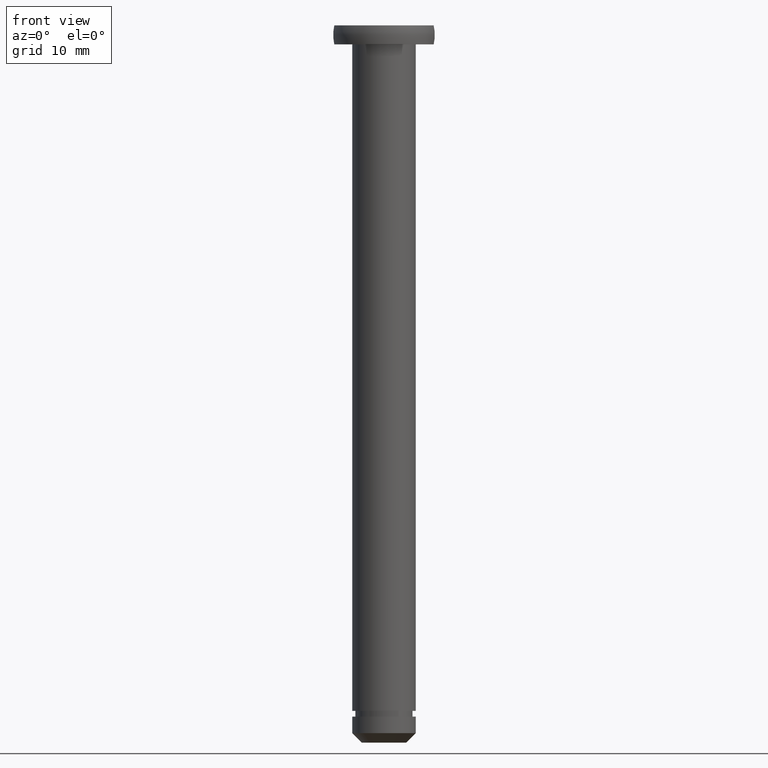
[diagram: clean part render]
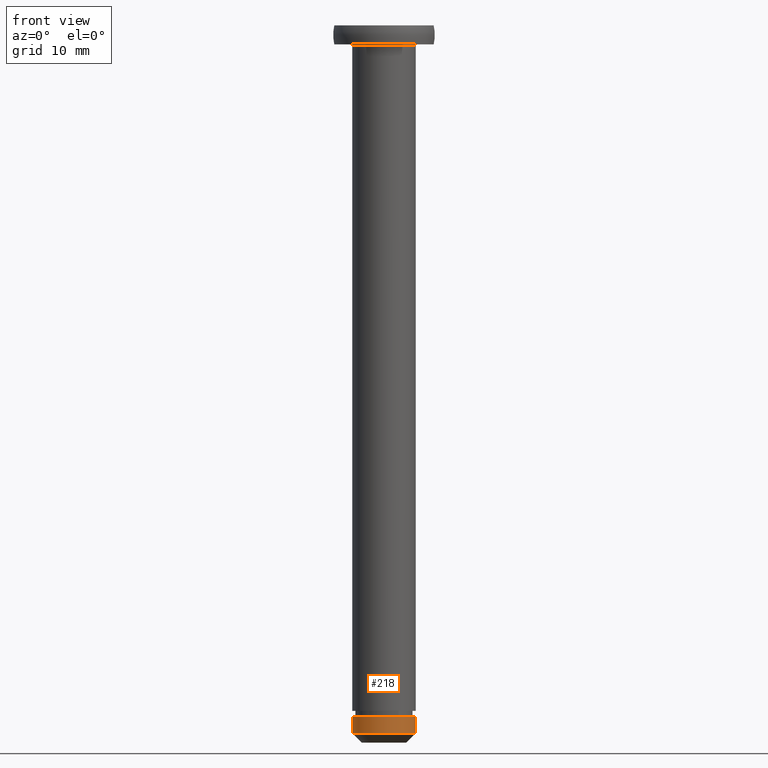
[diagram: same view with one face highlighted and labeled with its STEP entity id]
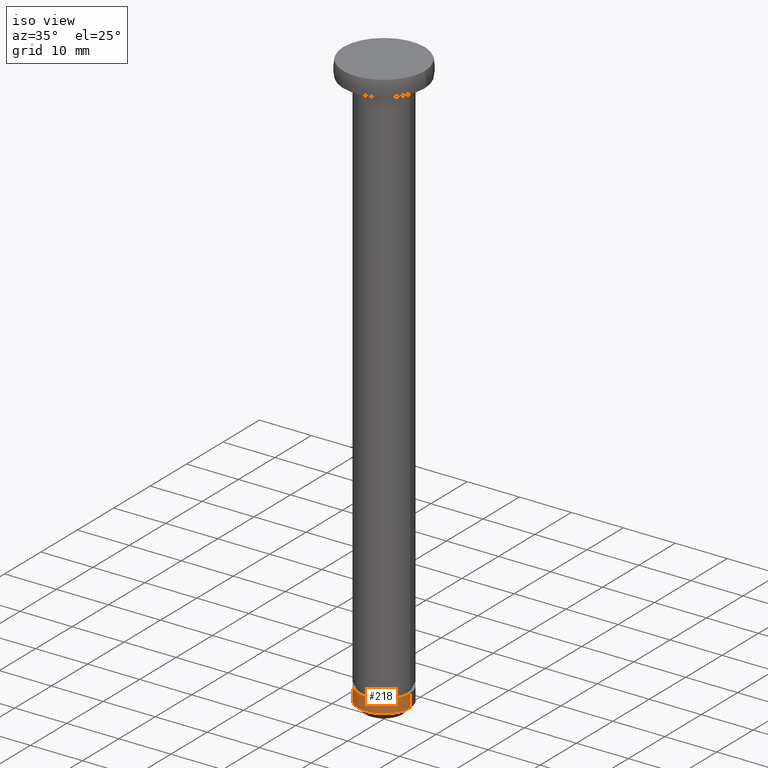
[diagram: same view with one face highlighted and labeled with its STEP entity id]
A machine part, front view. The second image highlights one B-rep face of the part: STEP entity #218.
A second angle (iso view) of the same face is appended — the face is thin or edge-on in the first view.
In plain terms, the highlighted cylindrical surface (edge-blend (fillet) strip) has radius 5 mm, axis along (0, 0, -1).
Its self-contained STEP definition (entity closure, byte-faithful):
#33 = DIRECTION ( 'NONE',  ( 0.0000000000000000000, 0.0000000000000000000, -1.000000000000000000 ) ) ;
#34 = CIRCLE ( 'NONE', #294, 5.000000000000000000 ) ;
#76 = FACE_OUTER_BOUND ( 'NONE', #126, .T. ) ;
#83 = LINE ( 'NONE', #355, #438 ) ;
#88 = CARTESIAN_POINT ( 'NONE',  ( 4.999999999999997300, 0.0000000000000000000, -111.5000000360870000 ) ) ;
#89 = LINE ( 'NONE', #134, #376 ) ;
#92 = EDGE_CURVE ( 'NONE', #324, #203, #34, .T. ) ;
#99 = EDGE_CURVE ( 'NONE', #203, #159, #83, .T. ) ;
#113 = ORIENTED_EDGE ( 'NONE', *, *, #396, .F. ) ;
#126 = EDGE_LOOP ( 'NONE', ( #113, #453, #219, #366 ) ) ;
#134 = CARTESIAN_POINT ( 'NONE',  ( 4.999999999999999100, 6.123233995736765300E-016, -3.280275378074167100E-014 ) ) ;
#153 = CARTESIAN_POINT ( 'NONE',  ( 0.0000000000000000000, 0.0000000000000000000, -108.9000000360869900 ) ) ;
#159 = VERTEX_POINT ( 'NONE', #365 ) ;
#172 = CARTESIAN_POINT ( 'NONE',  ( -5.000000000000000000, 0.0000000000000000000, -108.9000000360869900 ) ) ;
#203 = VERTEX_POINT ( 'NONE', #172 ) ;
#218 = ADVANCED_FACE ( 'NONE', ( #76 ), #296, .T. ) ;
#219 = ORIENTED_EDGE ( 'NONE', *, *, #99, .T. ) ;
#240 = DIRECTION ( 'NONE',  ( -1.000000000000000000, 0.0000000000000000000, 0.0000000000000000000 ) ) ;
#249 = DIRECTION ( 'NONE',  ( -1.000000000000000000, 0.0000000000000000000, 0.0000000000000000000 ) ) ;
#276 = DIRECTION ( 'NONE',  ( 0.0000000000000000000, 0.0000000000000000000, -1.000000000000000000 ) ) ;
#278 = CARTESIAN_POINT ( 'NONE',  ( 0.0000000000000000000, 0.0000000000000000000, -111.5000000360870000 ) ) ;
#285 = CARTESIAN_POINT ( 'NONE',  ( 0.0000000000000000000, 0.0000000000000000000, -3.280275378074167100E-014 ) ) ;
#289 = DIRECTION ( 'NONE',  ( -1.000000000000000000, 0.0000000000000000000, 0.0000000000000000000 ) ) ;
#294 = AXIS2_PLACEMENT_3D ( 'NONE', #153, #353, #289 ) ;
#296 = CYLINDRICAL_SURFACE ( 'NONE', #360, 4.999999999999999100 ) ;
#308 = CARTESIAN_POINT ( 'NONE',  ( 5.000000000000000000, 6.123233995736766300E-016, -108.9000000360869900 ) ) ;
#309 = EDGE_CURVE ( 'NONE', #443, #159, #345, .T. ) ;
#324 = VERTEX_POINT ( 'NONE', #308 ) ;
#345 = CIRCLE ( 'NONE', #437, 4.999999999999997300 ) ;
#353 = DIRECTION ( 'NONE',  ( 0.0000000000000000000, 0.0000000000000000000, -1.000000000000000000 ) ) ;
#355 = CARTESIAN_POINT ( 'NONE',  ( -4.999999999999999100, 0.0000000000000000000, -3.280275378074167100E-014 ) ) ;
#360 = AXIS2_PLACEMENT_3D ( 'NONE', #285, #452, #240 ) ;
#365 = CARTESIAN_POINT ( 'NONE',  ( -4.999999999999997300, 6.123233995736763300E-016, -111.5000000360870000 ) ) ;
#366 = ORIENTED_EDGE ( 'NONE', *, *, #309, .F. ) ;
#376 = VECTOR ( 'NONE', #395, 1000.000000000000000 ) ;
#395 = DIRECTION ( 'NONE',  ( 0.0000000000000000000, 0.0000000000000000000, -1.000000000000000000 ) ) ;
#396 = EDGE_CURVE ( 'NONE', #324, #443, #89, .T. ) ;
#437 = AXIS2_PLACEMENT_3D ( 'NONE', #278, #276, #249 ) ;
#438 = VECTOR ( 'NONE', #33, 1000.000000000000000 ) ;
#443 = VERTEX_POINT ( 'NONE', #88 ) ;
#452 = DIRECTION ( 'NONE',  ( 0.0000000000000000000, 0.0000000000000000000, -1.000000000000000000 ) ) ;
#453 = ORIENTED_EDGE ( 'NONE', *, *, #92, .T. ) ;